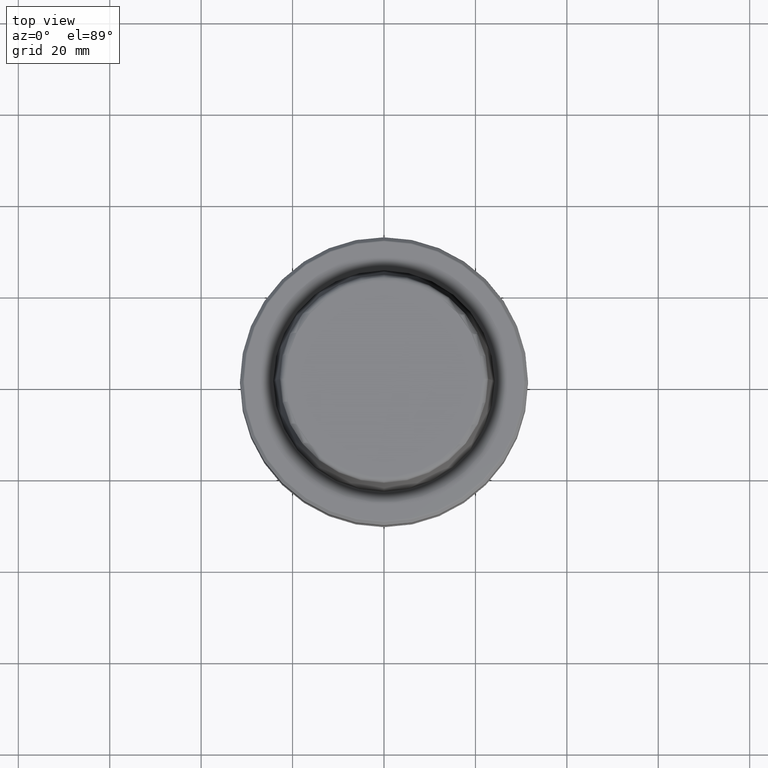
[diagram: clean part render]
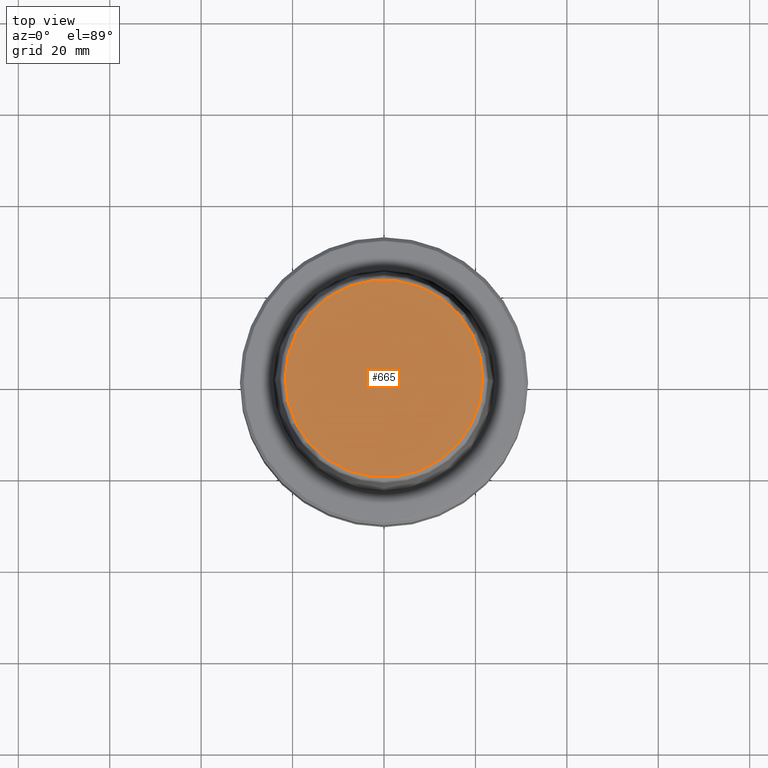
[diagram: same view with one face highlighted and labeled with its STEP entity id]
A machine part, top view. The second image highlights one B-rep face of the part: STEP entity #665.
In plain terms, the highlighted planar face has unit normal (0, 0, -1).
Its self-contained STEP definition (entity closure, byte-faithful):
#59 = CIRCLE ( 'NONE', #1017, 21.58108272732117100 ) ;
#63 = AXIS2_PLACEMENT_3D ( 'NONE', #561, #765, #679 ) ;
#76 = DIRECTION ( 'NONE',  ( 1.000000000000000000, 0.0000000000000000000, 0.0000000000000000000 ) ) ;
#119 = ORIENTED_EDGE ( 'NONE', *, *, #312, .T. ) ;
#165 = ORIENTED_EDGE ( 'NONE', *, *, #517, .T. ) ;
#202 = VERTEX_POINT ( 'NONE', #356 ) ;
#256 = CARTESIAN_POINT ( 'NONE',  ( 0.0000000000000000000, 0.0000000000000000000, 31.89999999999999900 ) ) ;
#274 = VERTEX_POINT ( 'NONE', #738 ) ;
#297 = CIRCLE ( 'NONE', #569, 21.58108272732117100 ) ;
#312 = EDGE_CURVE ( 'NONE', #202, #274, #59, .T. ) ;
#314 = CARTESIAN_POINT ( 'NONE',  ( 0.0000000000000000000, 0.0000000000000000000, 31.89999999999999900 ) ) ;
#320 = DIRECTION ( 'NONE',  ( -0.0000000000000000000, -0.0000000000000000000, 1.000000000000000000 ) ) ;
#356 = CARTESIAN_POINT ( 'NONE',  ( -21.58108272732117100, 2.716307157494421400E-015, 31.89999999999999900 ) ) ;
#517 = EDGE_CURVE ( 'NONE', #274, #202, #297, .T. ) ;
#561 = CARTESIAN_POINT ( 'NONE',  ( 0.0000000000000000000, 0.0000000000000000000, 31.89999999999999900 ) ) ;
#569 = AXIS2_PLACEMENT_3D ( 'NONE', #314, #320, #710 ) ;
#665 = ADVANCED_FACE ( 'NONE', ( #973 ), #1033, .F. ) ;
#679 = DIRECTION ( 'NONE',  ( -1.000000000000000000, 0.0000000000000000000, -0.0000000000000000000 ) ) ;
#710 = DIRECTION ( 'NONE',  ( 1.000000000000000000, 0.0000000000000000000, 0.0000000000000000000 ) ) ;
#738 = CARTESIAN_POINT ( 'NONE',  ( 21.58108272732117100, 0.0000000000000000000, 31.89999999999999900 ) ) ;
#765 = DIRECTION ( 'NONE',  ( 0.0000000000000000000, 0.0000000000000000000, -1.000000000000000000 ) ) ;
#777 = DIRECTION ( 'NONE',  ( -0.0000000000000000000, -0.0000000000000000000, 1.000000000000000000 ) ) ;
#973 = FACE_OUTER_BOUND ( 'NONE', #1039, .T. ) ;
#1017 = AXIS2_PLACEMENT_3D ( 'NONE', #256, #777, #76 ) ;
#1033 = PLANE ( 'NONE',  #63 ) ;
#1039 = EDGE_LOOP ( 'NONE', ( #165, #119 ) ) ;